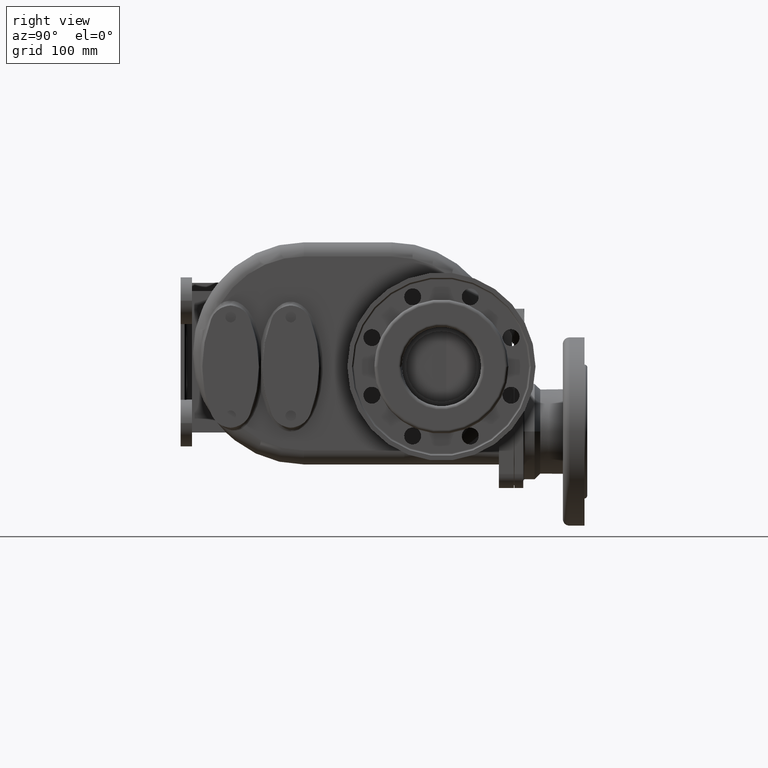
[diagram: clean part render]
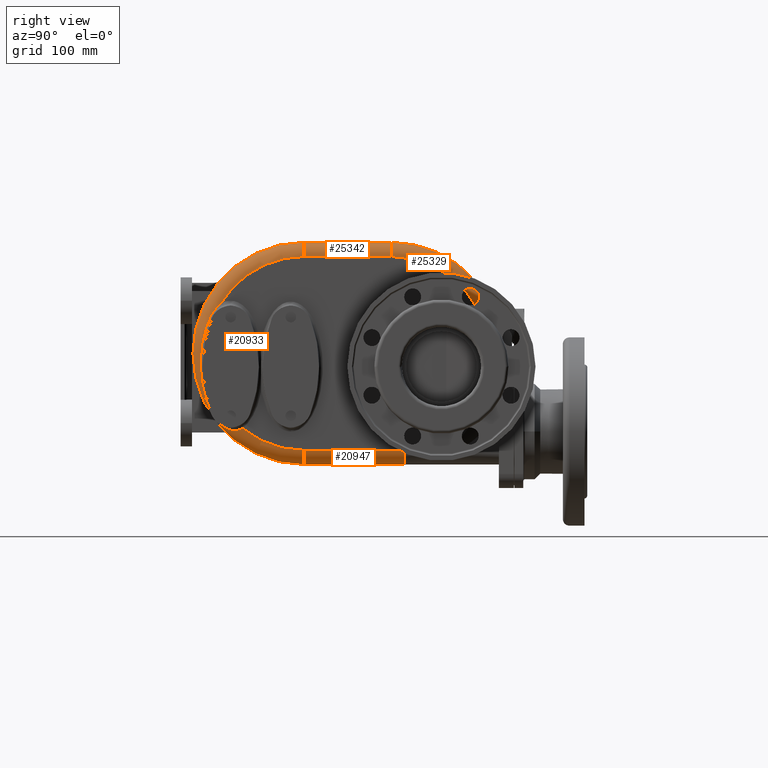
[diagram: same view with one multi-face feature highlighted, each face labeled with its STEP entity id]
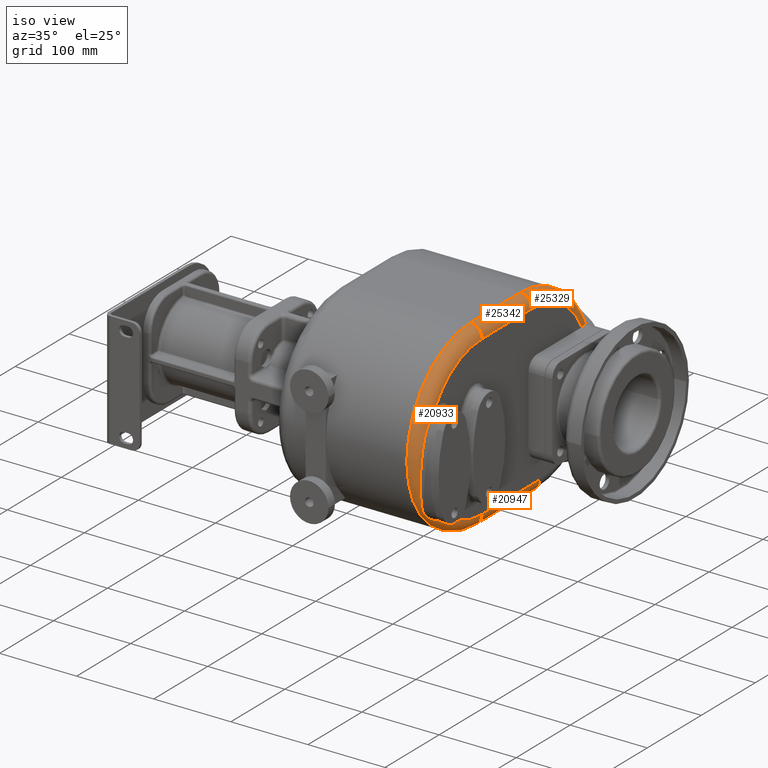
[diagram: same view with one multi-face feature highlighted, each face labeled with its STEP entity id]
A machine part, right view. The highlighted faces form ONE feature: a constant-radius fillet chain: 4 tangent blend faces with common blend radius 15 mm. The faces share edges in the B-rep.
A second angle (iso view) of the same feature is appended — it is thin or edge-on in the first view.
Their STEP definitions:
[1] entity #25342 (Cylinder):
#504=DIRECTION('',(0.E0,-1.E0,0.E0));
#505=VECTOR('',#504,9.277576673753E1);
#506=CARTESIAN_POINT('',(1.325E2,2.117757667375E2,1.03E2));
#507=LINE('',#506,#505);
#1461=CARTESIAN_POINT('',(1.175E2,1.19E2,1.03E2));
#1462=DIRECTION('',(0.E0,-1.E0,0.E0));
#1463=DIRECTION('',(1.E0,0.E0,0.E0));
#1464=AXIS2_PLACEMENT_3D('',#1461,#1462,#1463);
#4951=CARTESIAN_POINT('',(1.175E2,2.117757667375E2,1.03E2));
#4952=DIRECTION('',(0.E0,-1.E0,0.E0));
#4953=DIRECTION('',(1.E0,0.E0,0.E0));
#4954=AXIS2_PLACEMENT_3D('',#4951,#4952,#4953);
#4960=DIRECTION('',(0.E0,-1.E0,0.E0));
#4961=VECTOR('',#4960,9.277576673749E1);
#4962=CARTESIAN_POINT('',(1.175E2,2.117757667375E2,1.18E2));
#4963=LINE('',#4962,#4961);
#16940=CARTESIAN_POINT('',(1.175E2,1.19E2,1.18E2));
#16941=VERTEX_POINT('',#16940);
#16942=CARTESIAN_POINT('',(1.325E2,2.117757667375E2,1.03E2));
#16943=CARTESIAN_POINT('',(1.325E2,1.19E2,1.03E2));
#16944=VERTEX_POINT('',#16942);
#16945=VERTEX_POINT('',#16943);
#16946=CARTESIAN_POINT('',(1.175E2,2.117757667375E2,1.18E2));
#16947=VERTEX_POINT('',#16946);
#25330=CARTESIAN_POINT('',(1.175E2,2.127523002857E2,1.03E2));
#25331=DIRECTION('',(0.E0,-1.E0,0.E0));
#25332=DIRECTION('',(1.E0,0.E0,0.E0));
#25333=AXIS2_PLACEMENT_3D('',#25330,#25331,#25332);
#25334=CYLINDRICAL_SURFACE('',#25333,1.5E1);
#25335=ORIENTED_EDGE('',*,*,#20188,.T.);
#25336=ORIENTED_EDGE('',*,*,#20926,.T.);
#25338=ORIENTED_EDGE('',*,*,#25337,.F.);
#25339=ORIENTED_EDGE('',*,*,#25321,.F.);
#25340=EDGE_LOOP('',(#25335,#25336,#25338,#25339));
#25341=FACE_OUTER_BOUND('',#25340,.F.);
#25342=ADVANCED_FACE('',(#25341),#25334,.T.);
#1465=CIRCLE('',#1464,1.5E1);
#4955=CIRCLE('',#4954,1.5E1);
#20188=EDGE_CURVE('',#16944,#16945,#507,.T.);
#20926=EDGE_CURVE('',#16945,#16941,#1465,.T.);
#25321=EDGE_CURVE('',#16944,#16947,#4955,.T.);
#25337=EDGE_CURVE('',#16947,#16941,#4963,.T.);
[2] entity #25329 (Torus):
#508=CARTESIAN_POINT('',(1.325E2,2.117757667375E2,0.E0));
#509=DIRECTION('',(1.E0,0.E0,0.E0));
#510=DIRECTION('',(0.E0,8.947327565409E-1,4.466019417476E-1));
#511=AXIS2_PLACEMENT_3D('',#508,#509,#510);
#4899=CARTESIAN_POINT('',(1.175E2,3.243044999897E2,3.551456310680E1));
#4900=CARTESIAN_POINT('',(1.176953285419E2,3.242415765336E2,3.571393756589E1));
#4901=CARTESIAN_POINT('',(1.180856536439E2,3.241075058918E2,3.610971842280E1));
#4902=CARTESIAN_POINT('',(1.186701854044E2,3.238818223846E2,3.669435519363E1));
#4903=CARTESIAN_POINT('',(1.192518516025E2,3.236324479457E2,3.726789235868E1));
#4904=CARTESIAN_POINT('',(1.198299713791E2,3.233599056847E2,3.782953442002E1));
#4905=CARTESIAN_POINT('',(1.204032542652E2,3.230650349231E2,3.837790903970E1));
#4906=CARTESIAN_POINT('',(1.209700114613E2,3.227490560902E2,3.891133144301E1));
#4907=CARTESIAN_POINT('',(1.215296401156E2,3.224127052337E2,3.942919137459E1));
#4908=CARTESIAN_POINT('',(1.220808464170E2,3.220571721533E2,3.993026366949E1));
#4909=CARTESIAN_POINT('',(1.226222204946E2,3.216838937471E2,4.041329354694E1));
#4910=CARTESIAN_POINT('',(1.231534001900E2,3.212936667896E2,4.087800546699E1));
#4911=CARTESIAN_POINT('',(1.236731046310E2,3.208879962833E2,4.132334692514E1));
#4912=CARTESIAN_POINT('',(1.241803827744E2,3.204682915391E2,4.174862612736E1));
#4913=CARTESIAN_POINT('',(1.246749654062E2,3.200354325020E2,4.215375211108E1));
#4914=CARTESIAN_POINT('',(1.251556019727E2,3.195912149816E2,4.253786855359E1));
#4915=CARTESIAN_POINT('',(1.256218833824E2,3.191367990543E2,4.290086519633E1));
#4916=CARTESIAN_POINT('',(1.260735104658E2,3.186732304277E2,4.324273010166E1));
#4917=CARTESIAN_POINT('',(1.265095829852E2,3.182022488098E2,4.356304361418E1));
#4918=CARTESIAN_POINT('',(1.269301277795E2,3.177246769303E2,4.386211725628E1));
#4919=CARTESIAN_POINT('',(1.273348018628E2,3.172417246824E2,4.413999997027E1));
#4920=CARTESIAN_POINT('',(1.277229836351E2,3.167550414921E2,4.439660816352E1));
#4921=CARTESIAN_POINT('',(1.280950184843E2,3.162651060881E2,4.463252789237E1));
#4922=CARTESIAN_POINT('',(1.284506058135E2,3.157731956701E2,4.484792502646E1));
#4923=CARTESIAN_POINT('',(1.287895329543E2,3.152805737673E2,4.504307551612E1));
#4924=CARTESIAN_POINT('',(1.291122854106E2,3.147874706991E2,4.521865914624E1));
#4925=CARTESIAN_POINT('',(1.294186102183E2,3.142951967338E2,4.537494199424E1));
#4926=CARTESIAN_POINT('',(1.297085953357E2,3.138046226136E2,4.551241795974E1));
#4927=CARTESIAN_POINT('',(1.299827418627E2,3.133158594886E2,4.563175755069E1));
#4928=CARTESIAN_POINT('',(1.302409435355E2,3.128300584536E2,4.573335434144E1));
#4929=CARTESIAN_POINT('',(1.304834812166E2,3.123477315299E2,4.581779682608E1));
#4930=CARTESIAN_POINT('',(1.307108744569E2,3.118688084935E2,4.588571502692E1));
#4931=CARTESIAN_POINT('',(1.309230843994E2,3.113943596327E2,4.593756038763E1));
#4932=CARTESIAN_POINT('',(1.311205802706E2,3.109243765842E2,4.597393495472E1));
#4933=CARTESIAN_POINT('',(1.313037040157E2,3.104590071091E2,4.599535784905E1));
#4934=CARTESIAN_POINT('',(1.314162681952E2,3.101523546475E2,4.6E1));
#4935=CARTESIAN_POINT('',(1.314702122443E2,3.1E2,4.6E1));
#4937=CARTESIAN_POINT('',(1.314702122443E2,3.1E2,4.6E1));
#4938=CARTESIAN_POINT('',(1.315370320401E2,3.098112802693E2,4.6E1));
#4939=CARTESIAN_POINT('',(1.316645459877E2,3.094305453828E2,4.6E1));
#4940=CARTESIAN_POINT('',(1.318374077445E2,3.088488994453E2,4.6E1));
#4941=CARTESIAN_POINT('',(1.319911255332E2,3.082583874309E2,4.6E1));
#4942=CARTESIAN_POINT('',(1.321254923896E2,3.076589804216E2,4.6E1));
#4943=CARTESIAN_POINT('',(1.322399515149E2,3.070521707709E2,4.6E1));
#4944=CARTESIAN_POINT('',(1.323342437167E2,3.064383919258E2,4.6E1));
#4945=CARTESIAN_POINT('',(1.324080190998E2,3.058185281843E2,4.6E1));
#4946=CARTESIAN_POINT('',(1.324609541404E2,3.051941044732E2,4.6E1));
#4947=CARTESIAN_POINT('',(1.324928799214E2,3.045651887844E2,4.6E1));
#4948=CARTESIAN_POINT('',(1.325E2,3.041442419312E2,4.6E1));
#4949=CARTESIAN_POINT('',(1.325E2,3.039332406612E2,4.6E1));
#4951=CARTESIAN_POINT('',(1.175E2,2.117757667375E2,1.03E2));
#4952=DIRECTION('',(0.E0,-1.E0,0.E0));
#4953=DIRECTION('',(1.E0,0.E0,0.E0));
#4954=AXIS2_PLACEMENT_3D('',#4951,#4952,#4953);
#5238=CARTESIAN_POINT('',(1.175E2,2.117757667375E2,0.E0));
#5239=DIRECTION('',(1.E0,0.E0,0.E0));
#5240=DIRECTION('',(0.E0,9.536333326453E-1,3.009708737864E-1));
#5241=AXIS2_PLACEMENT_3D('',#5238,#5239,#5240);
#16942=CARTESIAN_POINT('',(1.325E2,2.117757667375E2,1.03E2));
#16944=VERTEX_POINT('',#16942);
#16946=CARTESIAN_POINT('',(1.175E2,2.117757667375E2,1.18E2));
#16947=VERTEX_POINT('',#16946);
#16948=CARTESIAN_POINT('',(1.325E2,3.039332406612E2,4.6E1));
#16949=VERTEX_POINT('',#16948);
#16950=CARTESIAN_POINT('',(1.175E2,3.243044999897E2,3.551456310680E1));
#16951=VERTEX_POINT('',#16950);
#16952=VERTEX_POINT('',#4935);
#25315=CARTESIAN_POINT('',(1.175E2,2.117757667375E2,0.E0));
#25316=DIRECTION('',(-1.E0,0.E0,0.E0));
#25317=DIRECTION('',(0.E0,9.560913955729E-1,2.930686665467E-1));
#25318=AXIS2_PLACEMENT_3D('',#25315,#25316,#25317);
#25319=TOROIDAL_SURFACE('',#25318,1.03E2,1.5E1);
#25320=ORIENTED_EDGE('',*,*,#20190,.T.);
#25322=ORIENTED_EDGE('',*,*,#25321,.T.);
#25324=ORIENTED_EDGE('',*,*,#25323,.F.);
#25325=ORIENTED_EDGE('',*,*,#23114,.T.);
#25326=ORIENTED_EDGE('',*,*,#23099,.T.);
#25327=EDGE_LOOP('',(#25320,#25322,#25324,#25325,#25326));
#25328=FACE_OUTER_BOUND('',#25327,.F.);
#25329=ADVANCED_FACE('',(#25328),#25319,.T.);
#512=CIRCLE('',#511,1.03E2);
#4936=B_SPLINE_CURVE_WITH_KNOTS('',3,(#4899,#4900,#4901,#4902,#4903,#4904,#4905,
#4906,#4907,#4908,#4909,#4910,#4911,#4912,#4913,#4914,#4915,#4916,#4917,#4918,
#4919,#4920,#4921,#4922,#4923,#4924,#4925,#4926,#4927,#4928,#4929,#4930,#4931,
#4932,#4933,#4934,#4935),.UNSPECIFIED.,.F.,.F.,(4,1,1,1,1,1,1,1,1,1,1,1,1,1,1,1,
1,1,1,1,1,1,1,1,1,1,1,1,1,1,1,1,1,1,4),(0.E0,2.941176470588E-2,
5.882352941176E-2,8.823529411765E-2,1.176470588235E-1,1.470588235294E-1,
1.764705882353E-1,2.058823529412E-1,2.352941176471E-1,2.647058823529E-1,
2.941176470588E-1,3.235294117647E-1,3.529411764706E-1,3.823529411765E-1,
4.117647058824E-1,4.411764705882E-1,4.705882352941E-1,5.E-1,5.294117647059E-1,
5.588235294118E-1,5.882352941176E-1,6.176470588235E-1,6.470588235294E-1,
6.764705882353E-1,7.058823529412E-1,7.352941176471E-1,7.647058823529E-1,
7.941176470588E-1,8.235294117647E-1,8.529411764706E-1,8.823529411765E-1,
9.117647058824E-1,9.411764705882E-1,9.705882352941E-1,1.E0),.UNSPECIFIED.);
#4950=B_SPLINE_CURVE_WITH_KNOTS('',3,(#4937,#4938,#4939,#4940,#4941,#4942,#4943,
#4944,#4945,#4946,#4947,#4948,#4949),.UNSPECIFIED.,.F.,.F.,(4,1,1,1,1,1,1,1,1,1,
4),(0.E0,1.E-1,2.E-1,3.E-1,4.E-1,5.E-1,6.E-1,7.E-1,8.E-1,9.E-1,1.E0),
.UNSPECIFIED.);
#4955=CIRCLE('',#4954,1.5E1);
#5242=CIRCLE('',#5241,1.18E2);
#20190=EDGE_CURVE('',#16949,#16944,#512,.T.);
#23099=EDGE_CURVE('',#16952,#16949,#4950,.T.);
#23114=EDGE_CURVE('',#16951,#16952,#4936,.T.);
#25321=EDGE_CURVE('',#16944,#16947,#4955,.T.);
#25323=EDGE_CURVE('',#16951,#16947,#5242,.T.);
[3] entity #20933 (Torus):
#497=CARTESIAN_POINT('',(1.325000206654E2,3.076040674511E1,5.312978356908E1));
#499=CARTESIAN_POINT('',(1.325E2,1.19E2,0.E0));
#500=DIRECTION('',(1.E0,0.E0,0.E0));
#501=DIRECTION('',(0.E0,0.E0,1.E0));
#502=AXIS2_PLACEMENT_3D('',#499,#500,#501);
#522=CARTESIAN_POINT('',(1.325E2,1.19E2,0.E0));
#523=DIRECTION('',(1.E0,0.E0,0.E0));
#524=DIRECTION('',(0.E0,-6.348914105984E-1,-7.726013828284E-1));
#525=AXIS2_PLACEMENT_3D('',#522,#523,#524);
#527=CARTESIAN_POINT('',(1.325E2,5.360618488877E1,-7.957794221179E1));
#1435=CARTESIAN_POINT('',(1.297032847718E2,4.297838300329E1,-8.186943368882E1));
#1436=CARTESIAN_POINT('',(1.297877013417E2,4.317986700471E1,-8.189535471015E1));
#1437=CARTESIAN_POINT('',(1.299529570221E2,4.357904317742E1,-8.193959783917E1));
#1438=CARTESIAN_POINT('',(1.301897086836E2,4.416594473430E1,-8.198415984486E1));
#1439=CARTESIAN_POINT('',(1.304151944607E2,4.474114179049E1,-8.200795749245E1));
#1440=CARTESIAN_POINT('',(1.306292859728E2,4.530472060955E1,-8.201198944298E1));
#1441=CARTESIAN_POINT('',(1.308319059353E2,4.585676332379E1,-8.199713142546E1));
#1442=CARTESIAN_POINT('',(1.310228795585E2,4.639714685161E1,-8.196435627361E1));
#1443=CARTESIAN_POINT('',(1.312021254102E2,4.692579175850E1,-8.191451003219E1));
#1444=CARTESIAN_POINT('',(1.313696363955E2,4.744280716116E1,-8.184842222060E1));
#1445=CARTESIAN_POINT('',(1.315254465066E2,4.794848628888E1,-8.176694955634E1));
#1446=CARTESIAN_POINT('',(1.316696304169E2,4.844314880085E1,-8.167078619856E1));
#1447=CARTESIAN_POINT('',(1.318022332599E2,4.892698841807E1,-8.156054751198E1));
#1448=CARTESIAN_POINT('',(1.319232585066E2,4.940020804267E1,-8.143699263457E1));
#1449=CARTESIAN_POINT('',(1.320327417961E2,4.986302449803E1,-8.130074757985E1));
#1450=CARTESIAN_POINT('',(1.321307463612E2,5.031571751747E1,-8.115227958799E1));
#1451=CARTESIAN_POINT('',(1.322173218198E2,5.075869613771E1,-8.099208733353E1));
#1452=CARTESIAN_POINT('',(1.322924982846E2,5.119240917802E1,-8.082063421607E1));
#1453=CARTESIAN_POINT('',(1.323562711666E2,5.161717941485E1,-8.063827670848E1));
#1454=CARTESIAN_POINT('',(1.324085715524E2,5.203294643695E1,-8.044545372129E1));
#1455=CARTESIAN_POINT('',(1.324493426060E2,5.243980561469E1,-8.024269583265E1));
#1456=CARTESIAN_POINT('',(1.324785298223E2,5.283783229522E1,-8.003047637121E1));
#1457=CARTESIAN_POINT('',(1.324960900249E2,5.322705232419E1,-7.980918831233E1));
#1458=CARTESIAN_POINT('',(1.324999927844E2,5.348078324444E1,-7.965592665049E1));
#1459=CARTESIAN_POINT('',(1.324999927597E2,5.360618472012E1,-7.957794235053E1));
#1461=CARTESIAN_POINT('',(1.175E2,1.19E2,1.03E2));
#1462=DIRECTION('',(0.E0,-1.E0,0.E0));
#1463=DIRECTION('',(1.E0,0.E0,0.E0));
#1464=AXIS2_PLACEMENT_3D('',#1461,#1462,#1463);
#1466=CARTESIAN_POINT('',(1.325000206654E2,3.076040674511E1,5.312978356908E1));
#1467=CARTESIAN_POINT('',(1.325000187597E2,3.053662251321E1,5.296449594145E1));
#1468=CARTESIAN_POINT('',(1.324977215613E2,3.008623423315E1,5.262100360972E1));
#1469=CARTESIAN_POINT('',(1.324880102812E2,2.940432279604E1,5.206696749122E1));
#1470=CARTESIAN_POINT('',(1.324724085246E2,2.871405455870E1,5.147045383268E1));
#1471=CARTESIAN_POINT('',(1.324513427755E2,2.801478869406E1,5.082852853696E1));
#1472=CARTESIAN_POINT('',(1.324252020729E2,2.730595908548E1,5.013807799038E1));
#1473=CARTESIAN_POINT('',(1.323943813735E2,2.658713022245E1,4.939552299283E1));
#1474=CARTESIAN_POINT('',(1.323592891123E2,2.585849005631E1,4.859772732573E1));
#1475=CARTESIAN_POINT('',(1.323204237732E2,2.512183153355E1,4.774315989548E1));
#1476=CARTESIAN_POINT('',(1.322783157385E2,2.437883728412E1,4.683009627888E1));
#1477=CARTESIAN_POINT('',(1.322334083241E2,2.363014032777E1,4.585581828988E1));
#1478=CARTESIAN_POINT('',(1.321861474858E2,2.287626302620E1,4.481675243018E1));
#1479=CARTESIAN_POINT('',(1.321369666361E2,2.211846486140E1,4.371045298884E1));
#1480=CARTESIAN_POINT('',(1.320863340658E2,2.135842912440E1,4.253456486305E1));
#1481=CARTESIAN_POINT('',(1.320346142946E2,2.059753905045E1,4.128661433300E1));
#1482=CARTESIAN_POINT('',(1.319821801167E2,1.983736899372E1,3.996370579240E1));
#1483=CARTESIAN_POINT('',(1.319293009252E2,1.907968477588E1,3.856361120065E1));
#1484=CARTESIAN_POINT('',(1.318762509510E2,1.832655445178E1,3.708391279528E1));
#1485=CARTESIAN_POINT('',(1.318231705841E2,1.758016454969E1,3.552286103299E1));
#1486=CARTESIAN_POINT('',(1.317701875976E2,1.684297806062E1,3.387856178978E1));
#1487=CARTESIAN_POINT('',(1.317172822264E2,1.611764807372E1,3.215007191753E1));
#1488=CARTESIAN_POINT('',(1.316644070895E2,1.540707102397E1,3.033641245170E1));
#1489=CARTESIAN_POINT('',(1.316113547616E2,1.471430317457E1,2.843770929823E1));
#1490=CARTESIAN_POINT('',(1.315578764776E2,1.404256578455E1,2.645410522536E1));
#1491=CARTESIAN_POINT('',(1.315035687988E2,1.339520999488E1,2.438699073407E1));
#1492=CARTESIAN_POINT('',(1.314479670624E2,1.277563045810E1,2.223784917904E1));
#1493=CARTESIAN_POINT('',(1.313904882281E2,1.218732755356E1,2.000943672239E1));
#1494=CARTESIAN_POINT('',(1.313304510945E2,1.163367268159E1,1.770477686134E1));
#1495=CARTESIAN_POINT('',(1.312671264161E2,1.111811942243E1,1.532794190298E1));
#1496=CARTESIAN_POINT('',(1.311996374008E2,1.064379393024E1,1.288357988119E1));
#1497=CARTESIAN_POINT('',(1.311271465087E2,1.021386985273E1,1.037687461718E1));
#1498=CARTESIAN_POINT('',(1.310486270231E2,9.831007374643E0,7.813893041708E0));
#1499=CARTESIAN_POINT('',(1.309631514676E2,9.497852939083E0,5.200738467893E0));
#1500=CARTESIAN_POINT('',(1.308696494534E2,9.216521937799E0,2.544598322340E0));
#1501=CARTESIAN_POINT('',(1.307670935536E2,8.988859916217E0,
-1.474987285188E-1));
#1502=CARTESIAN_POINT('',(1.306544870291E2,8.816383422256E0,-2.867842286033E0));
#1503=CARTESIAN_POINT('',(1.305307568600E2,8.700004469529E0,-5.608546210936E0));
#1504=CARTESIAN_POINT('',(1.303950074777E2,8.640463046375E0,-8.361742589765E0));
#1505=CARTESIAN_POINT('',(1.302462976103E2,8.637881139128E0,-1.111949898750E1));
#1506=CARTESIAN_POINT('',(1.300837990179E2,8.692004884784E0,-1.387381769907E1));
#1507=CARTESIAN_POINT('',(1.299068471598E2,8.802296925473E0,-1.661718073661E1));
#1508=CARTESIAN_POINT('',(1.297147828751E2,8.967660604915E0,-1.934220696884E1));
#1509=CARTESIAN_POINT('',(1.295072194086E2,9.186811738262E0,-2.204171395999E1));
#1510=CARTESIAN_POINT('',(1.292838227376E2,9.458137177436E0,-2.470957526449E1));
#1511=CARTESIAN_POINT('',(1.290444861481E2,9.779722654842E0,-2.733951189742E1));
#1512=CARTESIAN_POINT('',(1.287892428207E2,1.014963752904E1,-2.992678933535E1));
#1513=CARTESIAN_POINT('',(1.285182927992E2,1.056569171537E1,-3.246674229191E1));
#1514=CARTESIAN_POINT('',(1.282320260641E2,1.102584893967E1,-3.495606484528E1));
#1515=CARTESIAN_POINT('',(1.279309915179E2,1.152795329776E1,-3.739172503253E1));
#1516=CARTESIAN_POINT('',(1.276159315039E2,1.207009282969E1,-3.977183315912E1));
#1517=CARTESIAN_POINT('',(1.272878117314E2,1.265039182002E1,-4.209477186625E1));
#1518=CARTESIAN_POINT('',(1.269477967470E2,1.326717855917E1,-4.435965587115E1));
#1519=CARTESIAN_POINT('',(1.265974654554E2,1.391891536187E1,-4.656563129504E1));
#1520=CARTESIAN_POINT('',(1.262387160291E2,1.460406252176E1,-4.871190129071E1));
#1521=CARTESIAN_POINT('',(1.258741575056E2,1.532091666960E1,-5.079684217023E1));
#1522=CARTESIAN_POINT('',(1.255074797001E2,1.606690849248E1,-5.281659091335E1));
#1523=CARTESIAN_POINT('',(1.251434692163E2,1.683805259251E1,-5.476473946273E1));
#1524=CARTESIAN_POINT('',(1.247891255632E2,1.762737619861E1,-5.662912721332E1));
#1525=CARTESIAN_POINT('',(1.244526440801E2,1.842527098009E1,-5.839495278122E1));
#1526=CARTESIAN_POINT('',(1.241444085690E2,1.921499094623E1,-6.003699667867E1));
#1527=CARTESIAN_POINT('',(1.238723209033E2,1.998288280129E1,-6.154185547193E1));
#1528=CARTESIAN_POINT('',(1.236408895929E2,2.071768382315E1,-6.290417250878E1));
#1529=CARTESIAN_POINT('',(1.234510895640E2,2.141228937721E1,-6.412739882742E1));
#1530=CARTESIAN_POINT('',(1.233010152763E2,2.206780619103E1,-6.522745162597E1));
#1531=CARTESIAN_POINT('',(1.231865518049E2,2.268445646621E1,-6.621758850924E1));
#1532=CARTESIAN_POINT('',(1.231041613377E2,2.326888241306E1,-6.711747376399E1));
#1533=CARTESIAN_POINT('',(1.230502561151E2,2.382883742359E1,-6.794594422431E1));
#1534=CARTESIAN_POINT('',(1.230220496701E2,2.437512609650E1,-6.872352775467E1));
#1535=CARTESIAN_POINT('',(1.230177704804E2,2.491149588898E1,-6.945872903161E1));
#1536=CARTESIAN_POINT('',(1.230354244337E2,2.543744717260E1,-7.015379806154E1));
#1537=CARTESIAN_POINT('',(1.230736572060E2,2.595571109812E1,-7.081449050534E1));
#1538=CARTESIAN_POINT('',(1.231319118140E2,2.647108849992E1,-7.144819844998E1));
#1539=CARTESIAN_POINT('',(1.232108877609E2,2.698887656654E1,-7.206151906054E1));
#1540=CARTESIAN_POINT('',(1.233106396302E2,2.751402115219E1,-7.266045442976E1));
#1541=CARTESIAN_POINT('',(1.234314644426E2,2.805275571089E1,-7.325189314814E1));
#1542=CARTESIAN_POINT('',(1.235736654648E2,2.860685498054E1,-7.383660644088E1));
#1543=CARTESIAN_POINT('',(1.237362530887E2,2.917330646066E1,-7.441021197165E1));
#1544=CARTESIAN_POINT('',(1.239181579492E2,2.974968839539E1,-7.496922859824E1));
#1545=CARTESIAN_POINT('',(1.241196520389E2,3.033834196038E1,-7.551482011739E1));
#1546=CARTESIAN_POINT('',(1.243410074284E2,3.094281494123E1,-7.604915393730E1));
#1547=CARTESIAN_POINT('',(1.245821019997E2,3.156496543858E1,-7.657230645851E1));
#1548=CARTESIAN_POINT('',(1.248417734692E2,3.220431376886E1,-7.708228460826E1));
#1549=CARTESIAN_POINT('',(1.251188117858E2,3.286073639124E1,-7.757745481052E1));
#1550=CARTESIAN_POINT('',(1.254103089259E2,3.353062935862E1,-7.805384733296E1));
#1551=CARTESIAN_POINT('',(1.257134087128E2,3.421011512714E1,-7.850761119822E1));
#1552=CARTESIAN_POINT('',(1.260255907495E2,3.489665687756E1,-7.893645486586E1));
#1553=CARTESIAN_POINT('',(1.263443477024E2,3.558792828974E1,-7.933865777324E1));
#1554=CARTESIAN_POINT('',(1.266671124995E2,3.628169620943E1,-7.971305964647E1));
#1555=CARTESIAN_POINT('',(1.269916395112E2,3.697591788262E1,-8.005876017396E1));
#1556=CARTESIAN_POINT('',(1.273157652487E2,3.766842440262E1,-8.037501396765E1));
#1557=CARTESIAN_POINT('',(1.276372015823E2,3.835673345295E1,-8.066135053589E1));
#1558=CARTESIAN_POINT('',(1.279542109238E2,3.903937565531E1,-8.091807797775E1));
#1559=CARTESIAN_POINT('',(1.282657101446E2,3.971582298478E1,-8.114582635373E1));
#1560=CARTESIAN_POINT('',(1.285705969102E2,4.038532681177E1,-8.134518867665E1));
#1561=CARTESIAN_POINT('',(1.288678651967E2,4.104722491469E1,-8.151688660050E1));
#1562=CARTESIAN_POINT('',(1.291566044540E2,4.170086002408E1,-8.166167864872E1));
#1563=CARTESIAN_POINT('',(1.294359760840E2,4.234546514952E1,-8.178025290351E1));
#1564=CARTESIAN_POINT('',(1.296153687828E2,4.276853316873E1,-8.184243232401E1));
#1565=CARTESIAN_POINT('',(1.297032847718E2,4.297838300329E1,-8.186943368882E1));
#1567=CARTESIAN_POINT('',(1.175E2,1.19E2,-1.03E2));
#1568=DIRECTION('',(0.E0,1.E0,0.E0));
#1569=DIRECTION('',(1.E0,0.E0,0.E0));
#1570=AXIS2_PLACEMENT_3D('',#1567,#1568,#1569);
#5375=CARTESIAN_POINT('',(1.175E2,1.19E2,0.E0));
#5376=DIRECTION('',(1.E0,0.E0,0.E0));
#5377=DIRECTION('',(0.E0,0.E0,1.E0));
#5378=AXIS2_PLACEMENT_3D('',#5375,#5376,#5377);
#16936=CARTESIAN_POINT('',(1.325E2,1.19E2,-1.03E2));
#16937=VERTEX_POINT('',#16936);
#16938=CARTESIAN_POINT('',(1.175E2,1.19E2,-1.18E2));
#16939=VERTEX_POINT('',#16938);
#16940=CARTESIAN_POINT('',(1.175E2,1.19E2,1.18E2));
#16941=VERTEX_POINT('',#16940);
#16943=CARTESIAN_POINT('',(1.325E2,1.19E2,1.03E2));
#16945=VERTEX_POINT('',#16943);
#17007=VERTEX_POINT('',#497);
#17009=VERTEX_POINT('',#527);
#17013=VERTEX_POINT('',#1435);
#20915=CARTESIAN_POINT('',(1.175E2,1.19E2,0.E0));
#20916=DIRECTION('',(-1.E0,0.E0,0.E0));
#20917=DIRECTION('',(0.E0,8.275613572430E-3,9.999657565237E-1));
#20918=AXIS2_PLACEMENT_3D('',#20915,#20916,#20917);
#20919=TOROIDAL_SURFACE('',#20918,1.03E2,1.5E1);
#20920=ORIENTED_EDGE('',*,*,#20906,.T.);
#20921=ORIENTED_EDGE('',*,*,#20206,.T.);
#20923=ORIENTED_EDGE('',*,*,#20922,.T.);
#20925=ORIENTED_EDGE('',*,*,#20924,.F.);
#20927=ORIENTED_EDGE('',*,*,#20926,.F.);
#20928=ORIENTED_EDGE('',*,*,#20186,.T.);
#20930=ORIENTED_EDGE('',*,*,#20929,.T.);
#20931=EDGE_LOOP('',(#20920,#20921,#20923,#20925,#20927,#20928,#20930));
#20932=FACE_OUTER_BOUND('',#20931,.F.);
#20933=ADVANCED_FACE('',(#20932),#20919,.T.);
#503=CIRCLE('',#502,1.03E2);
#526=CIRCLE('',#525,1.03E2);
#1460=B_SPLINE_CURVE_WITH_KNOTS('',3,(#1435,#1436,#1437,#1438,#1439,#1440,#1441,
#1442,#1443,#1444,#1445,#1446,#1447,#1448,#1449,#1450,#1451,#1452,#1453,#1454,
#1455,#1456,#1457,#1458,#1459),.UNSPECIFIED.,.F.,.F.,(4,1,1,1,1,1,1,1,1,1,1,1,1,
1,1,1,1,1,1,1,1,1,4),(0.E0,4.545454545455E-2,9.090909090909E-2,
1.363636363636E-1,1.818181818182E-1,2.272727272727E-1,2.727272727273E-1,
3.181818181818E-1,3.636363636364E-1,4.090909090909E-1,4.545454545455E-1,5.E-1,
5.454545454545E-1,5.909090909091E-1,6.363636363636E-1,6.818181818182E-1,
7.272727272727E-1,7.727272727273E-1,8.181818181818E-1,8.636363636364E-1,
9.090909090909E-1,9.545454545455E-1,1.E0),.UNSPECIFIED.);
#1465=CIRCLE('',#1464,1.5E1);
#1566=B_SPLINE_CURVE_WITH_KNOTS('',3,(#1466,#1467,#1468,#1469,#1470,#1471,#1472,
#1473,#1474,#1475,#1476,#1477,#1478,#1479,#1480,#1481,#1482,#1483,#1484,#1485,
#1486,#1487,#1488,#1489,#1490,#1491,#1492,#1493,#1494,#1495,#1496,#1497,#1498,
#1499,#1500,#1501,#1502,#1503,#1504,#1505,#1506,#1507,#1508,#1509,#1510,#1511,
#1512,#1513,#1514,#1515,#1516,#1517,#1518,#1519,#1520,#1521,#1522,#1523,#1524,
#1525,#1526,#1527,#1528,#1529,#1530,#1531,#1532,#1533,#1534,#1535,#1536,#1537,
#1538,#1539,#1540,#1541,#1542,#1543,#1544,#1545,#1546,#1547,#1548,#1549,#1550,
#1551,#1552,#1553,#1554,#1555,#1556,#1557,#1558,#1559,#1560,#1561,#1562,#1563,
#1564,#1565),.UNSPECIFIED.,.F.,.F.,(4,1,1,1,1,1,1,1,1,1,1,1,1,1,1,1,1,1,1,1,1,1,
1,1,1,1,1,1,1,1,1,1,1,1,1,1,1,1,1,1,1,1,1,1,1,1,1,1,1,1,1,1,1,1,1,1,1,1,1,1,1,1,
1,1,1,1,1,1,1,1,1,1,1,1,1,1,1,1,1,1,1,1,1,1,1,1,1,1,1,1,1,1,1,1,1,1,1,4),(0.E0,
1.030927835052E-2,2.061855670103E-2,3.092783505155E-2,4.123711340206E-2,
5.154639175258E-2,6.185567010309E-2,7.216494845361E-2,8.247422680412E-2,
9.278350515464E-2,1.030927835052E-1,1.134020618557E-1,1.237113402062E-1,
1.340206185567E-1,1.443298969072E-1,1.546391752577E-1,1.649484536082E-1,
1.752577319588E-1,1.855670103093E-1,1.958762886598E-1,2.061855670103E-1,
2.164948453608E-1,2.268041237113E-1,2.371134020619E-1,2.474226804124E-1,
2.577319587629E-1,2.680412371134E-1,2.783505154639E-1,2.886597938144E-1,
2.989690721649E-1,3.092783505155E-1,3.195876288660E-1,3.298969072165E-1,
3.402061855670E-1,3.505154639175E-1,3.608247422680E-1,3.711340206186E-1,
3.814432989691E-1,3.917525773196E-1,4.020618556701E-1,4.123711340206E-1,
4.226804123711E-1,4.329896907216E-1,4.432989690722E-1,4.536082474227E-1,
4.639175257732E-1,4.742268041237E-1,4.845360824742E-1,4.948453608247E-1,
5.051546391753E-1,5.154639175258E-1,5.257731958763E-1,5.360824742268E-1,
5.463917525773E-1,5.567010309278E-1,5.670103092784E-1,5.773195876289E-1,
5.876288659794E-1,5.979381443299E-1,6.082474226804E-1,6.185567010309E-1,
6.288659793814E-1,6.391752577320E-1,6.494845360825E-1,6.597938144330E-1,
6.701030927835E-1,6.804123711340E-1,6.907216494845E-1,7.010309278351E-1,
7.113402061856E-1,7.216494845361E-1,7.319587628866E-1,7.422680412371E-1,
7.525773195876E-1,7.628865979381E-1,7.731958762887E-1,7.835051546392E-1,
7.938144329897E-1,8.041237113402E-1,8.144329896907E-1,8.247422680412E-1,
8.350515463918E-1,8.453608247423E-1,8.556701030928E-1,8.659793814433E-1,
8.762886597938E-1,8.865979381443E-1,8.969072164948E-1,9.072164948454E-1,
9.175257731959E-1,9.278350515464E-1,9.381443298969E-1,9.484536082474E-1,
9.587628865979E-1,9.690721649485E-1,9.793814432990E-1,9.896907216495E-1,1.E0),
.UNSPECIFIED.);
#1571=CIRCLE('',#1570,1.5E1);
#5379=CIRCLE('',#5378,1.18E2);
#20186=EDGE_CURVE('',#16945,#17007,#503,.T.);
#20206=EDGE_CURVE('',#17009,#16937,#526,.T.);
#20906=EDGE_CURVE('',#17013,#17009,#1460,.T.);
#20922=EDGE_CURVE('',#16937,#16939,#1571,.T.);
#20924=EDGE_CURVE('',#16941,#16939,#5379,.T.);
#20926=EDGE_CURVE('',#16945,#16941,#1465,.T.);
#20929=EDGE_CURVE('',#17007,#17013,#1566,.T.);
[4] entity #20947 (Cylinder):
#518=DIRECTION('',(0.E0,1.E0,0.E0));
#519=VECTOR('',#518,1.065725163232E2);
#520=CARTESIAN_POINT('',(1.325E2,1.19E2,-1.03E2));
#521=LINE('',#520,#519);
#1567=CARTESIAN_POINT('',(1.175E2,1.19E2,-1.03E2));
#1568=DIRECTION('',(0.E0,1.E0,0.E0));
#1569=DIRECTION('',(1.E0,0.E0,0.E0));
#1570=AXIS2_PLACEMENT_3D('',#1567,#1568,#1569);
#1572=CARTESIAN_POINT('',(1.175E2,2.255725163232E2,-1.03E2));
#1573=DIRECTION('',(0.E0,1.E0,0.E0));
#1574=DIRECTION('',(1.E0,0.E0,0.E0));
#1575=AXIS2_PLACEMENT_3D('',#1572,#1573,#1574);
#1698=DIRECTION('',(0.E0,1.E0,0.E0));
#1699=VECTOR('',#1698,1.065725163228E2);
#1700=CARTESIAN_POINT('',(1.175E2,1.19E2,-1.18E2));
#1701=LINE('',#1700,#1699);
#16928=CARTESIAN_POINT('',(1.175E2,2.255725163232E2,-1.18E2));
#16930=VERTEX_POINT('',#16928);
#16932=CARTESIAN_POINT('',(1.325E2,2.255725163232E2,-1.03E2));
#16934=VERTEX_POINT('',#16932);
#16936=CARTESIAN_POINT('',(1.325E2,1.19E2,-1.03E2));
#16937=VERTEX_POINT('',#16936);
#16938=CARTESIAN_POINT('',(1.175E2,1.19E2,-1.18E2));
#16939=VERTEX_POINT('',#16938);
#20934=CARTESIAN_POINT('',(1.175E2,1.180234664518E2,-1.03E2));
#20935=DIRECTION('',(0.E0,1.E0,0.E0));
#20936=DIRECTION('',(1.E0,0.E0,0.E0));
#20937=AXIS2_PLACEMENT_3D('',#20934,#20935,#20936);
#20938=CYLINDRICAL_SURFACE('',#20937,1.5E1);
#20939=ORIENTED_EDGE('',*,*,#20204,.T.);
#20941=ORIENTED_EDGE('',*,*,#20940,.T.);
#20943=ORIENTED_EDGE('',*,*,#20942,.F.);
#20944=ORIENTED_EDGE('',*,*,#20922,.F.);
#20945=EDGE_LOOP('',(#20939,#20941,#20943,#20944));
#20946=FACE_OUTER_BOUND('',#20945,.F.);
#20947=ADVANCED_FACE('',(#20946),#20938,.T.);
#1571=CIRCLE('',#1570,1.5E1);
#1576=CIRCLE('',#1575,1.5E1);
#20204=EDGE_CURVE('',#16937,#16934,#521,.T.);
#20922=EDGE_CURVE('',#16937,#16939,#1571,.T.);
#20940=EDGE_CURVE('',#16934,#16930,#1576,.T.);
#20942=EDGE_CURVE('',#16939,#16930,#1701,.T.);